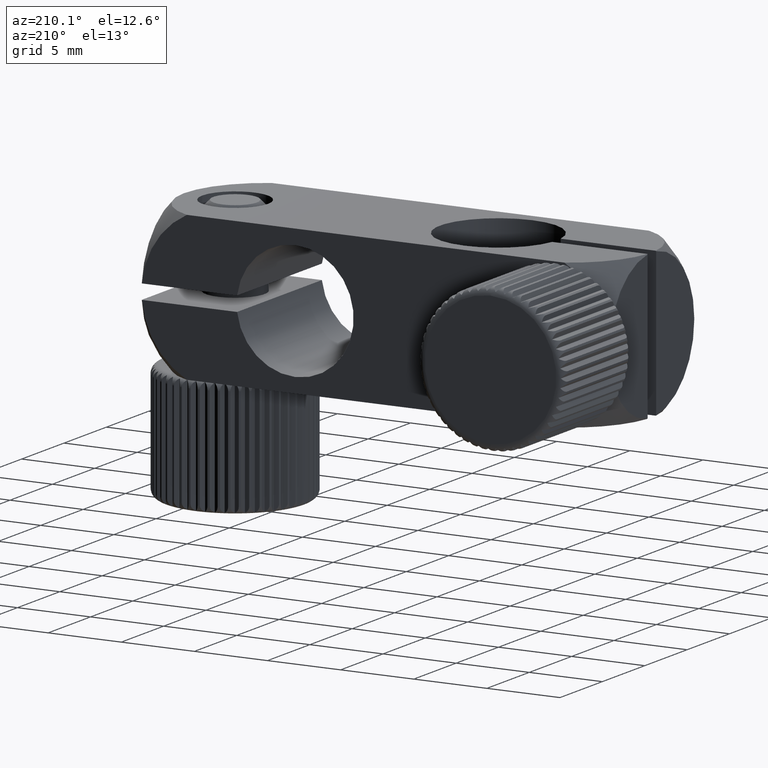
[diagram: clean part render]
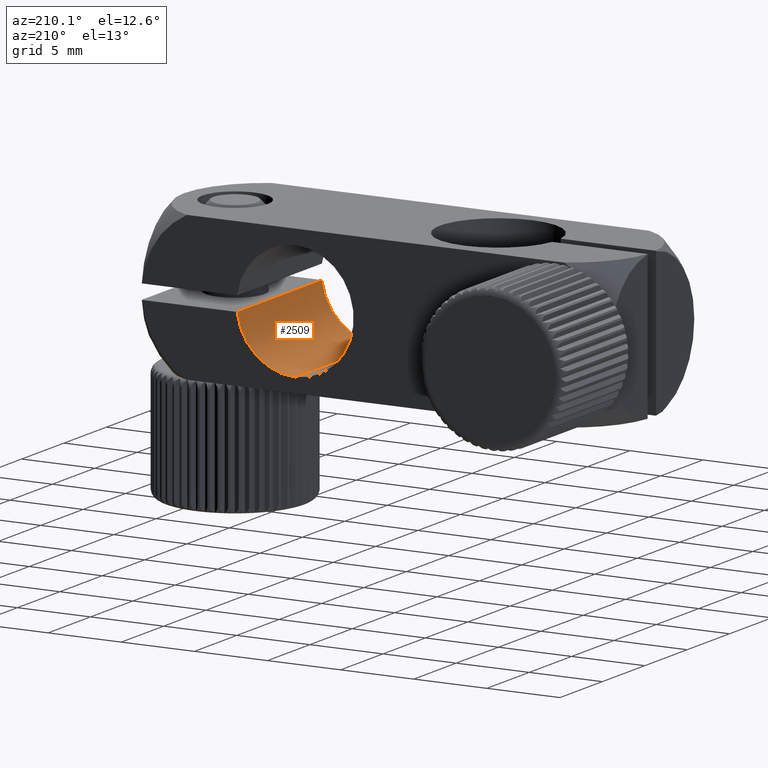
[diagram: same view with one face highlighted and labeled with its STEP entity id]
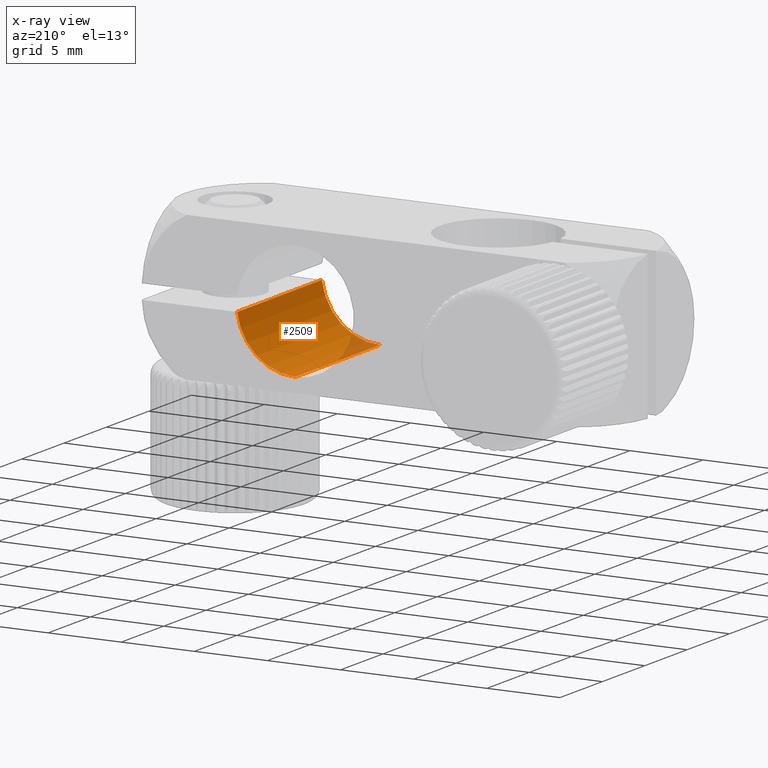
[diagram: x-ray of the same camera — body ghosted, the highlighted face saturated]
A machine part, auxiliary view. The second image highlights one B-rep face of the part: STEP entity #2509.
The next image is the same camera in x-ray: the body ghosted, the highlighted face saturated — about 5% of this face is hidden behind the body in this view.
In plain terms, the highlighted cylindrical surface (partial cylindrical patch) has radius 4 mm, axis along (0, -1, 0).
Its self-contained STEP definition (entity closure, byte-faithful):
#879 = CARTESIAN_POINT ( 'NONE',  ( 5.500000000000000000, 5.001000000000004800, 0.0000000000000000000 ) ) ;
#1731 = VERTEX_POINT ( 'NONE', #11859 ) ;
#2290 = EDGE_CURVE ( 'NONE', #7698, #1731, #5643, .T. ) ;
#2329 = DIRECTION ( 'NONE',  ( 1.355252715606880800E-016, -1.000000000000000000, -0.0000000000000000000 ) ) ;
#2509 = ADVANCED_FACE ( 'NONE', ( #14485 ), #18664, .F. ) ;
#2649 = VERTEX_POINT ( 'NONE', #4499 ) ;
#2665 = ORIENTED_EDGE ( 'NONE', *, *, #2290, .T. ) ;
#3304 = EDGE_LOOP ( 'NONE', ( #10961, #2665, #11504, #12692 ) ) ;
#3542 = CARTESIAN_POINT ( 'NONE',  ( 9.468626966596886500, 5.001000000000004800, -0.5000000000000008900 ) ) ;
#3810 = CIRCLE ( 'NONE', #5336, 4.000000000000001800 ) ;
#3839 = DIRECTION ( 'NONE',  ( 1.355252715606880800E-016, -1.000000000000000000, 0.0000000000000000000 ) ) ;
#3958 = DIRECTION ( 'NONE',  ( -1.000000000000000000, -2.168404344971008400E-016, 0.0000000000000000000 ) ) ;
#4019 = DIRECTION ( 'NONE',  ( 0.0000000000000000000, -1.000000000000000000, 0.0000000000000000000 ) ) ;
#4158 = CARTESIAN_POINT ( 'NONE',  ( 5.500000000000000000, 5.000000000000002700, -4.000000000000000900 ) ) ;
#4499 = CARTESIAN_POINT ( 'NONE',  ( 9.468626966596886500, -4.999999999999995600, -0.5000000000000008900 ) ) ;
#4991 = DIRECTION ( 'NONE',  ( 0.0000000000000000000, -1.000000000000000000, 0.0000000000000000000 ) ) ;
#5336 = AXIS2_PLACEMENT_3D ( 'NONE', #19437, #3839, #16422 ) ;
#5643 = LINE ( 'NONE', #9607, #16224 ) ;
#6167 = EDGE_CURVE ( 'NONE', #1731, #2649, #9270, .T. ) ;
#7698 = VERTEX_POINT ( 'NONE', #4158 ) ;
#8102 = EDGE_CURVE ( 'NONE', #7698, #14298, #3810, .T. ) ;
#9144 = AXIS2_PLACEMENT_3D ( 'NONE', #13266, #2329, #3958 ) ;
#9270 = CIRCLE ( 'NONE', #9144, 4.000000000000000900 ) ;
#9607 = CARTESIAN_POINT ( 'NONE',  ( 5.500000000000000000, 5.001000000000004800, -4.000000000000000900 ) ) ;
#10961 = ORIENTED_EDGE ( 'NONE', *, *, #8102, .F. ) ;
#11504 = ORIENTED_EDGE ( 'NONE', *, *, #6167, .T. ) ;
#11804 = DIRECTION ( 'NONE',  ( 0.0000000000000000000, 0.0000000000000000000, -1.000000000000000000 ) ) ;
#11859 = CARTESIAN_POINT ( 'NONE',  ( 5.500000000000000000, -4.999999999999997300, -4.000000000000000900 ) ) ;
#12450 = VECTOR ( 'NONE', #19470, 1000.000000000000000 ) ;
#12617 = EDGE_CURVE ( 'NONE', #14298, #2649, #13917, .T. ) ;
#12692 = ORIENTED_EDGE ( 'NONE', *, *, #12617, .F. ) ;
#13266 = CARTESIAN_POINT ( 'NONE',  ( 5.500000000000000000, -4.999999999999997300, 0.0000000000000000000 ) ) ;
#13902 = CARTESIAN_POINT ( 'NONE',  ( 9.468626966596886500, 5.000000000000003600, -0.5000000000000008900 ) ) ;
#13917 = LINE ( 'NONE', #3542, #12450 ) ;
#14298 = VERTEX_POINT ( 'NONE', #13902 ) ;
#14485 = FACE_OUTER_BOUND ( 'NONE', #3304, .T. ) ;
#16224 = VECTOR ( 'NONE', #4991, 1000.000000000000000 ) ;
#16422 = DIRECTION ( 'NONE',  ( 1.000000000000000000, 2.168404344971007900E-016, 0.0000000000000000000 ) ) ;
#18664 = CYLINDRICAL_SURFACE ( 'NONE', #18670, 4.000000000000000900 ) ;
#18670 = AXIS2_PLACEMENT_3D ( 'NONE', #879, #4019, #11804 ) ;
#19437 = CARTESIAN_POINT ( 'NONE',  ( 5.500000000000000000, 5.000000000000002700, 0.0000000000000000000 ) ) ;
#19470 = DIRECTION ( 'NONE',  ( 0.0000000000000000000, -1.000000000000000000, 0.0000000000000000000 ) ) ;